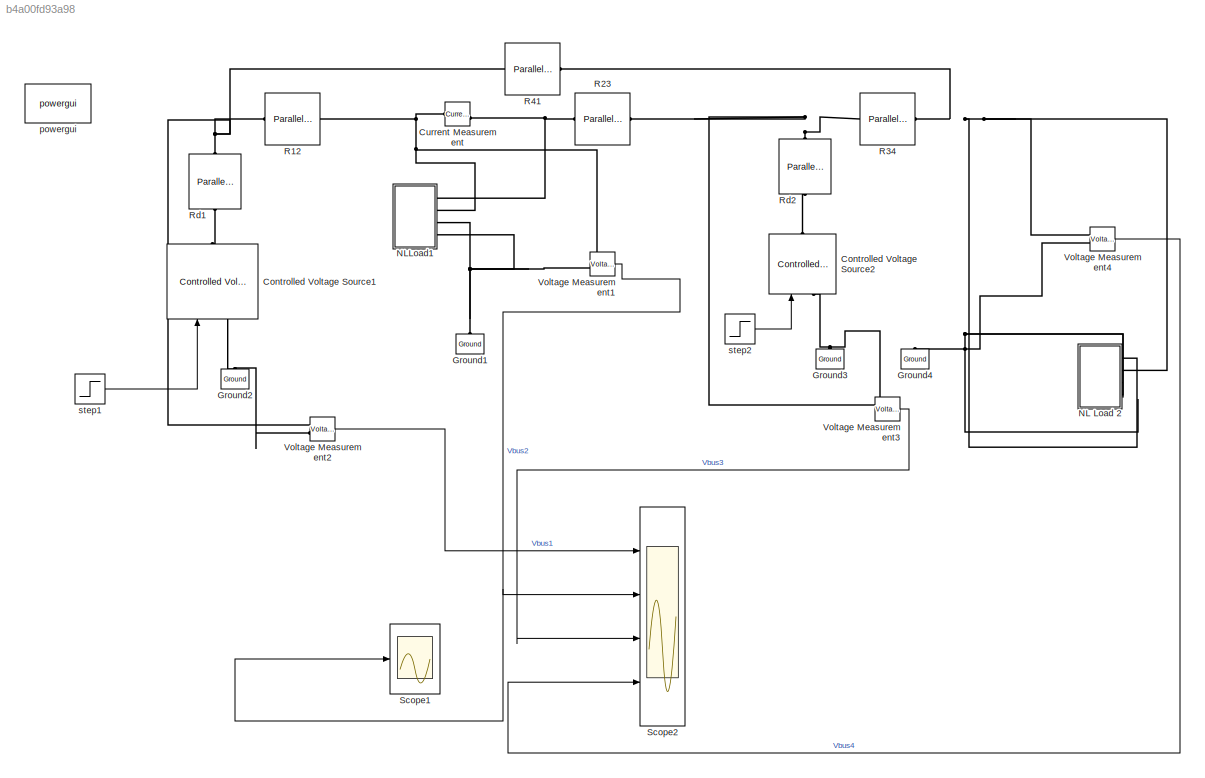
MODEL slx_b4a00fd93a98
KIND model
CONFIG AbsTol = auto
CONFIG FixedStep = auto
CONFIG MaxStep = auto
CONFIG MinStep = auto
CONFIG RelTol = 1e-3
CONFIG SampleTimeConstraint = Unconstrained
CONFIG Solver = VariableStepAuto
CONFIG SolverMode = Auto
CONFIG SolverName = VariableStepAuto
CONFIG StartTime = 0.0
CONFIG StopTime = 1.0
BLOCK [Reference] Controlled Voltage Source1  REF=powerlib/Electrical
Sources/Controlled Voltage Source
  Ports = [1, 0, 0, 0, 0, 1, 1]
  SourceBlock = powerlib/Electrical\nSources/Controlled Voltage Source
  SourceType = Controlled Voltage Source
BLOCK [Reference] Controlled Voltage Source2  REF=powerlib/Electrical
Sources/Controlled Voltage Source
  Ports = [1, 0, 0, 0, 0, 1, 1]
  SourceBlock = powerlib/Electrical\nSources/Controlled Voltage Source
  SourceType = Controlled Voltage Source
BLOCK [Reference] Current Measurement  REF=powerlib/Measurements/Current Measurement
  Ports = [0, 1, 0, 0, 0, 1, 1]
  SourceBlock = powerlib/Measurements/Current Measurement
  SourceType = Current Measurement
  UserDataPersistent = on
BLOCK [Reference] Ground1  REF=powerlib/Elements/Ground
  Ports = [0, 0, 0, 0, 0, 1]
  SourceBlock = powerlib/Elements/Ground
  SourceType = Ground
BLOCK [Reference] Ground2  REF=powerlib/Elements/Ground
  Ports = [0, 0, 0, 0, 0, 1]
  SourceBlock = powerlib/Elements/Ground
  SourceType = Ground
BLOCK [Reference] Ground3  REF=powerlib/Elements/Ground
  Ports = [0, 0, 0, 0, 0, 1]
  SourceBlock = powerlib/Elements/Ground
  SourceType = Ground
BLOCK [Reference] Ground4  REF=powerlib/Elements/Ground
  Ports = [0, 0, 0, 0, 0, 1]
  SourceBlock = powerlib/Elements/Ground
  SourceType = Ground
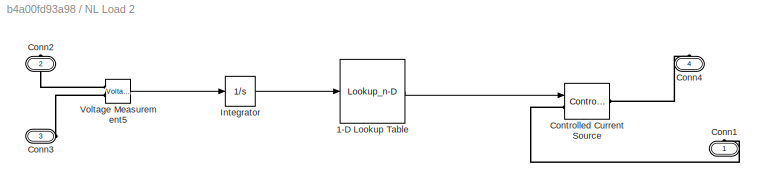
BLOCK [SubSystem] NL Load 2
  Ports = [0, 0, 0, 0, 0, 0, 4]
  RequestExecContextInheritance = off
  Variant = off
BLOCK [Lookup_n-D] NL Load 2/1-D Lookup Table
  BreakpointsForDimension1 = [-1.25 -1 1 1.25]*(230*sqrt(2)/(2*pi*50))
  InternalRulePriority = Speed
  NumberOfTableDimensions = 1
  Ports = [1, 1]
  RndMeth = Simplest
  Table = [-2 -1 1 2]*(230*sqrt(2)/(4*pi*50))
BLOCK [PMIOPort] NL Load 2/Conn1
  Port = 1
  Side = Right
BLOCK [PMIOPort] NL Load 2/Conn2
  Port = 2
  Side = Right
BLOCK [PMIOPort] NL Load 2/Conn3
  Port = 3
  Side = Right
BLOCK [PMIOPort] NL Load 2/Conn4
  Port = 4
  Side = Right
BLOCK [Reference] NL Load 2/Controlled Current Source  REF=powerlib/Electrical
Sources/Controlled Current Source
  Ports = [1, 0, 0, 0, 0, 1, 1]
  SourceBlock = powerlib/Electrical\nSources/Controlled Current Source
  SourceType = Controlled Current Source
BLOCK [Integrator] NL Load 2/Integrator
  Ports = [1, 1]
BLOCK [Reference] NL Load 2/Voltage Measurement5  REF=powerlib/Measurements/Voltage Measurement
  Ports = [0, 1, 0, 0, 0, 2]
  SourceBlock = powerlib/Measurements/Voltage Measurement
  SourceType = Voltage Measurement
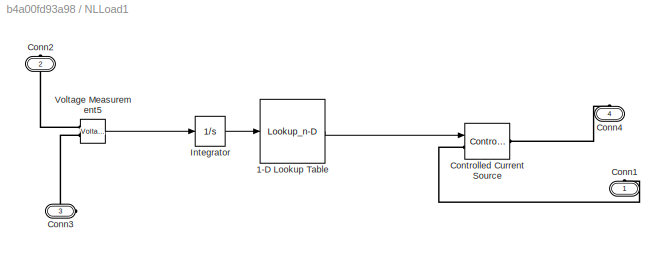
BLOCK [SubSystem] NLLoad1
  Ports = [0, 0, 0, 0, 0, 0, 4]
  RequestExecContextInheritance = off
  Variant = off
BLOCK [Lookup_n-D] NLLoad1/1-D Lookup Table
  BreakpointsForDimension1 = [-1.25 -1 1 1.25]*(230*sqrt(2)/(2*pi*50))
  InternalRulePriority = Speed
  NumberOfTableDimensions = 1
  Ports = [1, 1]
  RndMeth = Simplest
  Table = [-2 -1 1 2]*(230*sqrt(2)/(4*pi*50))
BLOCK [PMIOPort] NLLoad1/Conn1
  Port = 1
  Side = Right
BLOCK [PMIOPort] NLLoad1/Conn2
  Port = 2
  Side = Right
BLOCK [PMIOPort] NLLoad1/Conn3
  Port = 3
  Side = Right
BLOCK [PMIOPort] NLLoad1/Conn4
  Port = 4
  Side = Right
BLOCK [Reference] NLLoad1/Controlled Current Source  REF=powerlib/Electrical
Sources/Controlled Current Source
  Ports = [1, 0, 0, 0, 0, 1, 1]
  SourceBlock = powerlib/Electrical\nSources/Controlled Current Source
  SourceType = Controlled Current Source
BLOCK [Integrator] NLLoad1/Integrator
  Ports = [1, 1]
BLOCK [Reference] NLLoad1/Voltage Measurement5  REF=powerlib/Measurements/Voltage Measurement
  Ports = [0, 1, 0, 0, 0, 2]
  SourceBlock = powerlib/Measurements/Voltage Measurement
  SourceType = Voltage Measurement
BLOCK [Reference] R12  REF=powerlib/Elements/Parallel RLC Branch
  AttributesFormatString = \n
  Ports = [0, 0, 0, 0, 0, 1, 1]
  SourceBlock = powerlib/Elements/Parallel RLC Branch
  SourceType = Parallel RLC Branch
BLOCK [Reference] R23  REF=powerlib/Elements/Parallel RLC Branch
  AttributesFormatString = \n
  Ports = [0, 0, 0, 0, 0, 1, 1]
  SourceBlock = powerlib/Elements/Parallel RLC Branch
  SourceType = Parallel RLC Branch
BLOCK [Reference] R34  REF=powerlib/Elements/Parallel RLC Branch
  AttributesFormatString = \n
  Ports = [0, 0, 0, 0, 0, 1, 1]
  SourceBlock = powerlib/Elements/Parallel RLC Branch
  SourceType = Parallel RLC Branch
BLOCK [Reference] R41  REF=powerlib/Elements/Parallel RLC Branch
  AttributesFormatString = \n
  Ports = [0, 0, 0, 0, 0, 1, 1]
  SourceBlock = powerlib/Elements/Parallel RLC Branch
  SourceType = Parallel RLC Branch
BLOCK [Reference] Rd1  REF=powerlib/Elements/Parallel RLC Branch
  AttributesFormatString = \n
  Ports = [0, 0, 0, 0, 0, 1, 1]
  SourceBlock = powerlib/Elements/Parallel RLC Branch
  SourceType = Parallel RLC Branch
BLOCK [Reference] Rd2  REF=powerlib/Elements/Parallel RLC Branch
  AttributesFormatString = \n
  Ports = [0, 0, 0, 0, 0, 1, 1]
  SourceBlock = powerlib/Elements/Parallel RLC Branch
  SourceType = Parallel RLC Branch
BLOCK [Scope] Scope1
  Ports = [1]
  ScopeSpecificationString = Simulink.scopes.TimeScopeBlockCfg('CurrentConfiguration', extmgr.ConfigurationSet(extmgr.Configuration('Core','General UI',true),extmgr.Configuration('Core','Source UI',true),extmgr.Configuration('Sources','WiredSimulink',true,'DataLoggingVariableName','ScopeData1'),extmgr.Configuration('Visuals','Time Domain',true,'SerializedDisplays',{struct('MinYLimReal','0.92184','MaxYLimReal','0.92939','YLabe...<+1461ch>
BLOCK [Scope] Scope2
  NumInputPorts = 4
  Ports = [4]
  ScopeSpecificationString = Simulink.scopes.TimeScopeBlockCfg('CurrentConfiguration', extmgr.ConfigurationSet(extmgr.Configuration('Core','General UI',true),extmgr.Configuration('Core','Source UI',true),extmgr.Configuration('Sources','WiredSimulink',true),extmgr.Configuration('Visuals','Time Domain',true,'SerializedDisplays',{struct('MinYLimReal','-0.125','MaxYLimReal','1.125','YLabelReal','','MinYLimMag','0.00000','MaxYLimM...<+1492ch>
BLOCK [Reference] Voltage Measurement1  REF=powerlib/Measurements/Voltage Measurement
  Ports = [0, 1, 0, 0, 0, 2]
  SourceBlock = powerlib/Measurements/Voltage Measurement
  SourceType = Voltage Measurement
BLOCK [Reference] Voltage Measurement2  REF=powerlib/Measurements/Voltage Measurement
  Ports = [0, 1, 0, 0, 0, 2]
  SourceBlock = powerlib/Measurements/Voltage Measurement
  SourceType = Voltage Measurement
BLOCK [Reference] Voltage Measurement3  REF=powerlib/Measurements/Voltage Measurement
  Ports = [0, 1, 0, 0, 0, 2]
  SourceBlock = powerlib/Measurements/Voltage Measurement
  SourceType = Voltage Measurement
BLOCK [Reference] Voltage Measurement4  REF=powerlib/Measurements/Voltage Measurement
  Ports = [0, 1, 0, 0, 0, 2]
  SourceBlock = powerlib/Measurements/Voltage Measurement
  SourceType = Voltage Measurement
BLOCK [Reference] powergui  REF=powerlib/powergui
  Ports = []
  Priority = 1
  SourceBlock = powerlib/powergui
  SourceType = PSB option menu block
  UserDataPersistent = on
BLOCK [Step] step1
  Time = 0.01
BLOCK [Step] step2
  Time = 0.01
LINE NL Load 2/1-D Lookup Table:1 -> NL Load 2/Controlled Current Source:1
LINE NL Load 2/Integrator:1 -> NL Load 2/1-D Lookup Table:1
LINE NL Load 2/Voltage Measurement5:1 -> NL Load 2/Integrator:1
LINE NLLoad1/1-D Lookup Table:1 -> NLLoad1/Controlled Current Source:1
LINE NLLoad1/Integrator:1 -> NLLoad1/1-D Lookup Table:1
LINE NLLoad1/Voltage Measurement5:1 -> NLLoad1/Integrator:1
NET Voltage Measurement1:1 -> Scope1:1, Scope2:2
LINE Voltage Measurement2:1 -> Scope2:1
LINE Voltage Measurement3:1 -> Scope2:3
LINE Voltage Measurement4:1 -> Scope2:4
LINE step1:1 -> Controlled Voltage Source1:1
LINE step2:1 -> Controlled Voltage Source2:1
PNET net1: Controlled Voltage Source1:LConn1 -- Ground2:LConn1 -- Voltage Measurement2:LConn2
PLINE Controlled Voltage Source1:RConn1 -- Rd1:LConn1
PNET net2: Controlled Voltage Source2:LConn1 -- Ground3:LConn1 -- Voltage Measurement3:LConn2
PLINE Controlled Voltage Source2:RConn1 -- Rd2:LConn1
PNET net3: Current Measurement:LConn1 -- NLLoad1:RConn2 -- R12:RConn1 -- Voltage Measurement1:LConn1
PNET net4: Current Measurement:RConn1 -- NLLoad1:RConn1 -- R23:LConn1
PNET net5: Ground1:LConn1 -- NLLoad1:RConn3 -- NLLoad1:RConn4 -- Voltage Measurement1:LConn2
PNET net6: Ground4:LConn1 -- NL Load 2:RConn3 -- NL Load 2:RConn4 -- Voltage Measurement4:LConn2
PLINE NL Load 2/Conn1:RConn1 -- NL Load 2/Controlled Current Source:LConn1
PLINE NL Load 2/Conn2:RConn1 -- NL Load 2/Voltage Measurement5:LConn1
PLINE NL Load 2/Conn3:RConn1 -- NL Load 2/Voltage Measurement5:LConn2
PLINE NL Load 2/Conn4:RConn1 -- NL Load 2/Controlled Current Source:RConn1
PNET net7: NL Load 2:RConn1 -- NL Load 2:RConn2 -- R34:RConn1 -- R41:RConn1 -- Voltage Measurement4:LConn1
PLINE NLLoad1/Conn1:RConn1 -- NLLoad1/Controlled Current Source:LConn1
PLINE NLLoad1/Conn2:RConn1 -- NLLoad1/Voltage Measurement5:LConn1
PLINE NLLoad1/Conn3:RConn1 -- NLLoad1/Voltage Measurement5:LConn2
PLINE NLLoad1/Conn4:RConn1 -- NLLoad1/Controlled Current Source:RConn1
PNET net8: R12:LConn1 -- R41:LConn1 -- Rd1:RConn1 -- Voltage Measurement2:LConn1
PNET net9: R23:RConn1 -- R34:LConn1 -- Rd2:RConn1 -- Voltage Measurement3:LConn1
note: NET lines group one-source signal fan-out (src -> all destinations, sorted); 1:1 wires keep LINE; PNET lines group multi-terminal physical nets as a canonical sorted terminal list (undirected conserving connections); 2-terminal nets keep the pairwise PLINE form
